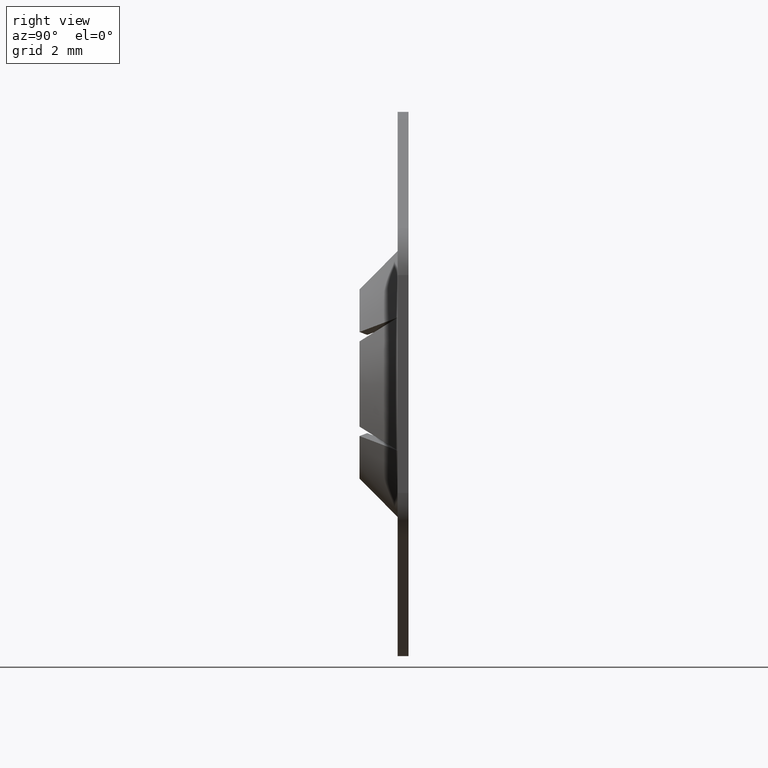
[diagram: clean part render]
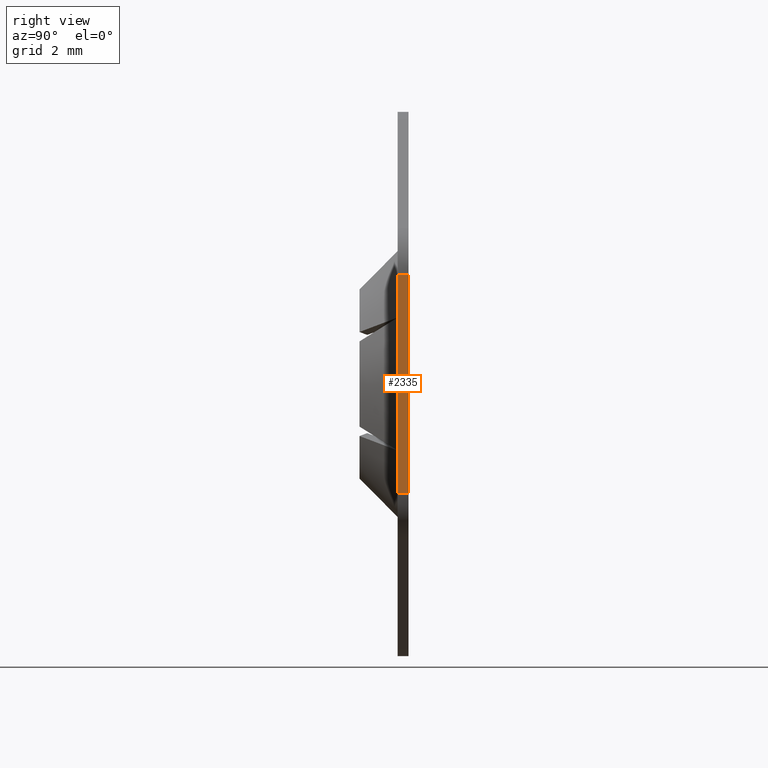
[diagram: same view with one face highlighted and labeled with its STEP entity id]
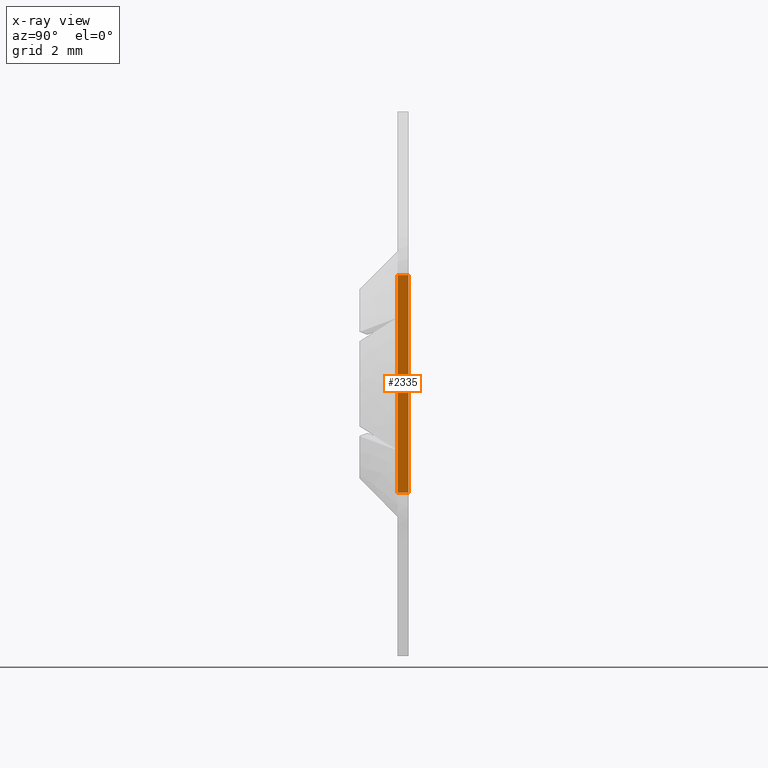
[diagram: x-ray of the same camera — body ghosted, the highlighted face saturated]
A machine part, right view. The second image highlights one B-rep face of the part: STEP entity #2335.
The next image is the same camera in x-ray: the body ghosted, the highlighted face saturated — about 0% of this face is hidden behind the body in this view.
In plain terms, the highlighted face is a freeform B-spline surface patch.
Its self-contained STEP definition (entity closure, byte-faithful):
#1270=CARTESIAN_POINT('',(8.928203228824559,-0.400000000000019,-3.999999999938405));
#1271=VERTEX_POINT('',#1270);
#1284=CARTESIAN_POINT('',(8.928203228824559,-0.400000000000019,4.000000000709545));
#1285=VERTEX_POINT('',#1284);
#1286=CARTESIAN_POINT('',(8.928203228824559,-0.400000000000019,4.000000000709545));
#1287=CARTESIAN_POINT('',(8.928203228824559,-0.400000000000019,-3.999999999938405));
#1288=QUASI_UNIFORM_CURVE('',1,(#1286,#1287),.UNSPECIFIED.,.F.,.U.);
#1289=EDGE_CURVE('',#1285,#1271,#1288,.T.);
#2206=CARTESIAN_POINT('',(8.928203228824559,0.0,4.000000000709545));
#2207=VERTEX_POINT('',#2206);
#2225=CARTESIAN_POINT('',(8.928203228824559,0.0,4.000000000709545));
#2226=CARTESIAN_POINT('',(8.928203228824559,-0.400000000000019,4.000000000709545));
#2227=QUASI_UNIFORM_CURVE('',1,(#2225,#2226),.UNSPECIFIED.,.F.,.U.);
#2228=EDGE_CURVE('',#2207,#1285,#2227,.T.);
#2247=CARTESIAN_POINT('',(8.928203228824559,0.0,-3.999999999938405));
#2248=VERTEX_POINT('',#2247);
#2263=CARTESIAN_POINT('',(8.928203228824559,-0.400000000000019,-3.999999999938405));
#2264=CARTESIAN_POINT('',(8.928203228824559,0.0,-3.999999999938405));
#2265=QUASI_UNIFORM_CURVE('',1,(#2263,#2264),.UNSPECIFIED.,.F.,.U.);
#2266=EDGE_CURVE('',#1271,#2248,#2265,.T.);
#2320=CARTESIAN_POINT('',(8.928203228824559,-0.419979999224742,-4.399599984465218));
#2321=CARTESIAN_POINT('',(8.928203228824559,-0.419979999224742,4.399600199813080));
#2322=CARTESIAN_POINT('',(8.928203228824559,0.019980009953559,-4.399599984465218));
#2323=CARTESIAN_POINT('',(8.928203228824559,0.019980009953559,4.399600199813080));
#2324=B_SPLINE_SURFACE_WITH_KNOTS('',1,1,((#2320,#2322),(#2321,#2323)),.UNSPECIFIED.,.F.,.F.,.U.,(2,2),(2,2),(0.0,8.799200184278298),(0.0,0.439960009178301),.UNSPECIFIED.);
#2325=ORIENTED_EDGE('',*,*,#1289,.T.);
#2326=ORIENTED_EDGE('',*,*,#2266,.T.);
#2327=CARTESIAN_POINT('',(8.928203228824559,0.0,4.000000000709545));
#2328=CARTESIAN_POINT('',(8.928203228824559,0.0,-3.999999999938405));
#2329=QUASI_UNIFORM_CURVE('',1,(#2327,#2328),.UNSPECIFIED.,.F.,.U.);
#2330=EDGE_CURVE('',#2207,#2248,#2329,.T.);
#2331=ORIENTED_EDGE('',*,*,#2330,.F.);
#2332=ORIENTED_EDGE('',*,*,#2228,.T.);
#2333=EDGE_LOOP('',(#2325,#2326,#2331,#2332));
#2334=FACE_OUTER_BOUND('',#2333,.T.);
#2335=ADVANCED_FACE('',(#2334),#2324,.F.);